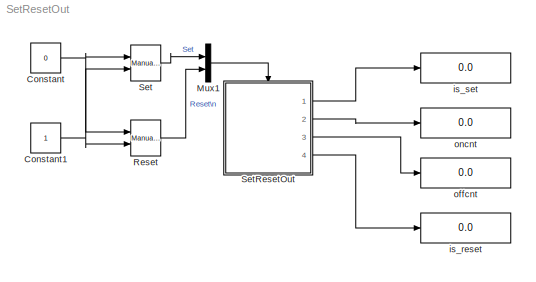
MODEL SetResetOut
KIND model
CONFIG AbsTol = auto
CONFIG FixedStep = auto
CONFIG MaxStep = auto
CONFIG MinStep = auto
CONFIG RelTol = 1e-3
CONFIG Solver = FixedStepDiscrete
CONFIG SolverMode = Auto
CONFIG StartTime = 0.0
CONFIG StopTime = 10000.0
BLOCK [Constant] Constant
  Value = 0
BLOCK [Constant] Constant1
BLOCK [Mux] Mux1
  DisplayOption = bar
  Inputs = 2
  Ports = [2, 1]
BLOCK [Reference] Reset  REF=simulink/Signal\nRouting/Manual Switch
  Ports = [2, 1]
  SourceBlock = simulink/Signal\nRouting/Manual Switch
  SourceType = Manual Switch
  action = 0
  sw = 1
BLOCK [Reference] Set  REF=simulink/Signal\nRouting/Manual Switch
  Ports = [2, 1]
  SourceBlock = simulink/Signal\nRouting/Manual Switch
  SourceType = Manual Switch
  action = 0
  sw = 1
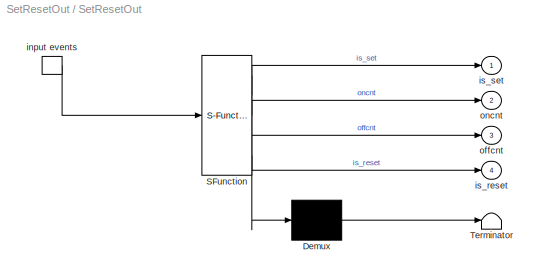
BLOCK [SubSystem] SetResetOut
  MaskDescription = Stateflow diagram
  MaskDisplay = plot(sf('Private','sfblk','xIcon'),sf('Private','sfblk','yIcon'));text(0.5,0,sf('Private', 'sfblk', 'tIcon'),'HorizontalAl','Center','VerticalAl','Bottom');
  MaskIconFrame = off
  MaskIconOpaque = off
  MaskIconRotate = none
  MaskIconUnits = autoscale
  MaskSelfModifiable = on
  MaskType = Stateflow
  Ports = [0, 4, 0, 1]
  TreatAsAtomicUnit = off
BLOCK [Demux] SetResetOut/ Demux 
  Outputs = 1
  Ports = [1, 1]
BLOCK [S-Function] SetResetOut/ SFunction 
  FunctionName = sf_sfun
  PortCounts = [1 5]
  Ports = [1, 5]
  Tag = Stateflow S-Function SetResetOut 1
BLOCK [Terminator] SetResetOut/ Terminator 
BLOCK [TriggerPort] SetResetOut/ input events 
  Ports = [0, 1]
  ShowOutputPort = on
  TriggerType = either
BLOCK [Outport] SetResetOut/is_reset
  Port = 4
BLOCK [Outport] SetResetOut/is_set
BLOCK [Outport] SetResetOut/offcnt
  Port = 3
BLOCK [Outport] SetResetOut/oncnt
  Port = 2
BLOCK [Display] is_reset
  Decimation = 1
  Ports = [1]
BLOCK [Display] is_set
  Decimation = 1
  Ports = [1]
BLOCK [Display] offcnt
  Decimation = 1
  Ports = [1]
BLOCK [Display] oncnt
  Decimation = 1
  Ports = [1]
NET Constant1:1 -> Reset:2, Set:2
NET Constant:1 -> Reset:1, Set:1
LINE Mux1:1 -> SetResetOut:trigger
LINE Reset:1 -> Mux1:2
LINE Set:1 -> Mux1:1
LINE SetResetOut/ Demux :1 -> SetResetOut/ Terminator :1
LINE SetResetOut/ SFunction :1 -> SetResetOut/ Demux :1
LINE SetResetOut/ SFunction :2 -> SetResetOut/is_set:1
LINE SetResetOut/ SFunction :3 -> SetResetOut/oncnt:1
LINE SetResetOut/ SFunction :4 -> SetResetOut/offcnt:1
LINE SetResetOut/ SFunction :5 -> SetResetOut/is_reset:1
LINE SetResetOut/ input events :1 -> SetResetOut/ SFunction :1
LINE SetResetOut:1 -> is_set:1
LINE SetResetOut:2 -> oncnt:1
LINE SetResetOut:3 -> offcnt:1
LINE SetResetOut:4 -> is_reset:1
note: NET lines group one-source signal fan-out (src -> all destinations, sorted); 1:1 wires keep LINE
CHART SetResetOut states=2 transitions=3
  STATE_LABEL 'On/\\nen: is_set=1; oncnt++;\\ndu: oncnt++;\\nex: is_reset=1;'
  STATE_LABEL 'Off/\\nen: is_set=2; offcnt++;\\ndu: offcnt++;\\nex: is_reset=2;'
